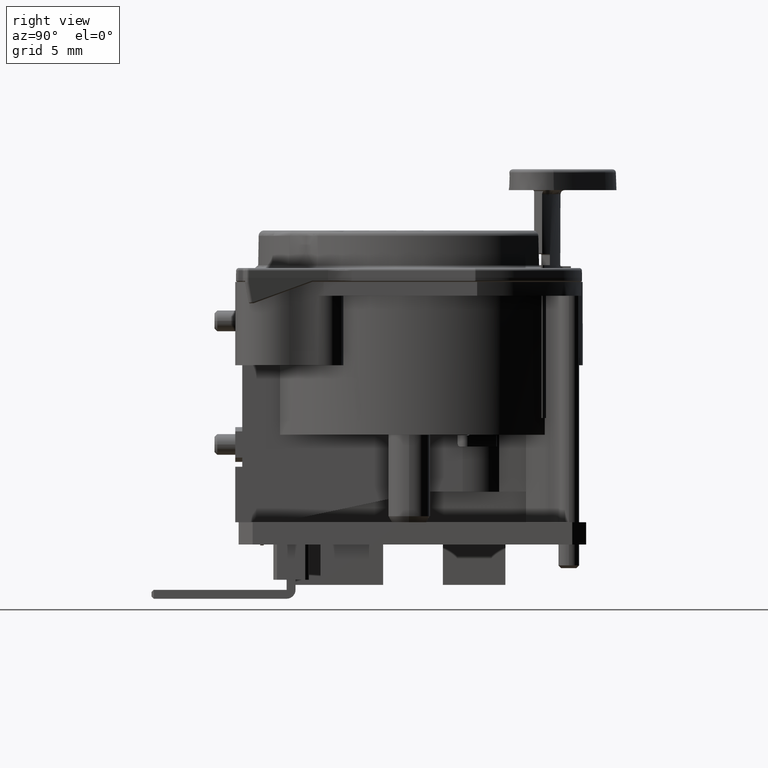
[diagram: clean part render]
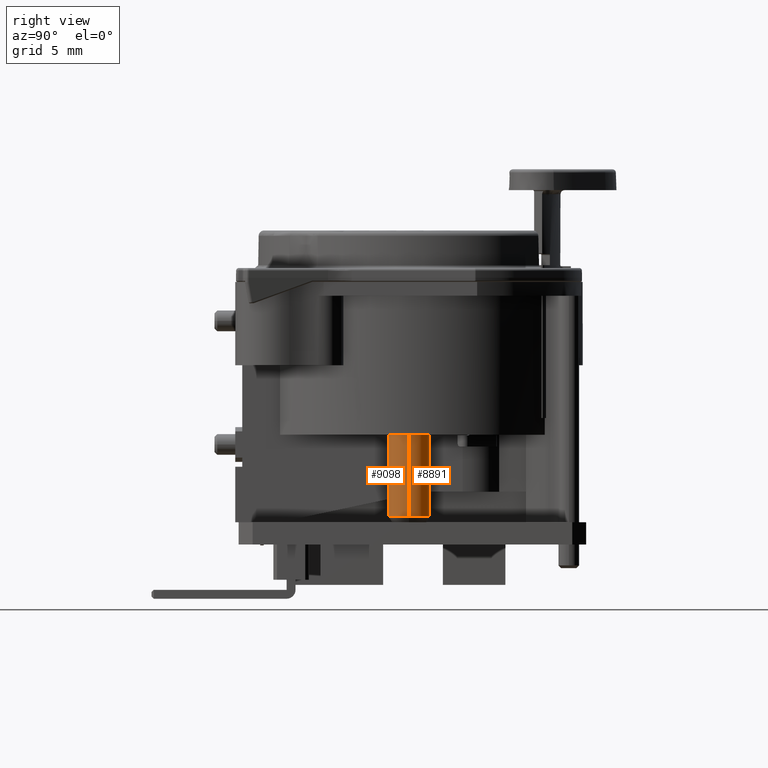
[diagram: same view with one multi-face feature highlighted, each face labeled with its STEP entity id]
A machine part, right view. The highlighted faces form ONE feature: a constant-radius fillet chain: 2 tangent blend faces with common blend radius 1.5 mm. The faces share edges in the B-rep.
Their STEP definitions:
[1] entity #9098 (Cylinder):
#478=CARTESIAN_POINT('',(8.425E0,0.E0,-1.47E1));
#479=DIRECTION('',(0.E0,0.E0,-1.E0));
#480=DIRECTION('',(1.E0,0.E0,0.E0));
#481=AXIS2_PLACEMENT_3D('',#478,#479,#480);
#600=DIRECTION('',(2.787742245480E-6,-2.268451731851E-9,-9.999999999961E-1));
#601=VECTOR('',#600,5.866977859362E0);
#602=CARTESIAN_POINT('',(6.925E0,0.E0,-1.47E1));
#603=LINE('',#602,#601);
#724=CARTESIAN_POINT('',(8.425E0,0.E0,-2.056697418476E1));
#725=DIRECTION('',(0.E0,0.E0,-1.E0));
#726=DIRECTION('',(1.E0,0.E0,0.E0));
#727=AXIS2_PLACEMENT_3D('',#724,#725,#726);
#729=DIRECTION('',(-2.787742244572E-6,2.268451742948E-9,-9.999999999961E-1));
#730=VECTOR('',#729,5.866977859362E0);
#731=CARTESIAN_POINT('',(9.925E0,0.E0,-1.47E1));
#732=LINE('',#731,#730);
#6878=CARTESIAN_POINT('',(6.925E0,0.E0,-1.47E1));
#6879=CARTESIAN_POINT('',(9.925E0,0.E0,-1.47E1));
#6880=VERTEX_POINT('',#6878);
#6881=VERTEX_POINT('',#6879);
#7765=CARTESIAN_POINT('',(6.925E0,0.E0,-2.056697418476E1));
#7766=CARTESIAN_POINT('',(9.925E0,0.E0,-2.056697418476E1));
#7767=VERTEX_POINT('',#7765);
#7768=VERTEX_POINT('',#7766);
#9087=CARTESIAN_POINT('',(8.425E0,0.E0,-1.47E1));
#9088=DIRECTION('',(0.E0,0.E0,-1.E0));
#9089=DIRECTION('',(-1.E0,0.E0,0.E0));
#9090=AXIS2_PLACEMENT_3D('',#9087,#9088,#9089);
#9091=CYLINDRICAL_SURFACE('',#9090,1.5E0);
#9092=ORIENTED_EDGE('',*,*,#9081,.T.);
#9093=ORIENTED_EDGE('',*,*,#8887,.F.);
#9094=ORIENTED_EDGE('',*,*,#8804,.F.);
#9095=ORIENTED_EDGE('',*,*,#8884,.T.);
#9096=EDGE_LOOP('',(#9092,#9093,#9094,#9095));
#9097=FACE_OUTER_BOUND('',#9096,.F.);
#9098=ADVANCED_FACE('',(#9097),#9091,.T.);
#482=CIRCLE('',#481,1.5E0);
#728=CIRCLE('',#727,1.5E0);
#8804=EDGE_CURVE('',#6881,#6880,#482,.T.);
#8884=EDGE_CURVE('',#6881,#7768,#732,.T.);
#8887=EDGE_CURVE('',#6880,#7767,#603,.T.);
#9081=EDGE_CURVE('',#7768,#7767,#728,.T.);
[2] entity #8891 (Cylinder):
#473=CARTESIAN_POINT('',(8.425E0,0.E0,-1.47E1));
#474=DIRECTION('',(0.E0,0.E0,-1.E0));
#475=DIRECTION('',(-1.E0,0.E0,0.E0));
#476=AXIS2_PLACEMENT_3D('',#473,#474,#475);
#595=CARTESIAN_POINT('',(8.425E0,0.E0,-2.056697418476E1));
#596=DIRECTION('',(0.E0,0.E0,-1.E0));
#597=DIRECTION('',(-1.E0,0.E0,0.E0));
#598=AXIS2_PLACEMENT_3D('',#595,#596,#597);
#600=DIRECTION('',(2.787742245480E-6,-2.268451731851E-9,-9.999999999961E-1));
#601=VECTOR('',#600,5.866977859362E0);
#602=CARTESIAN_POINT('',(6.925E0,0.E0,-1.47E1));
#603=LINE('',#602,#601);
#729=DIRECTION('',(-2.787742244572E-6,2.268451742948E-9,-9.999999999961E-1));
#730=VECTOR('',#729,5.866977859362E0);
#731=CARTESIAN_POINT('',(9.925E0,0.E0,-1.47E1));
#732=LINE('',#731,#730);
#6878=CARTESIAN_POINT('',(6.925E0,0.E0,-1.47E1));
#6879=CARTESIAN_POINT('',(9.925E0,0.E0,-1.47E1));
#6880=VERTEX_POINT('',#6878);
#6881=VERTEX_POINT('',#6879);
#7765=CARTESIAN_POINT('',(6.925E0,0.E0,-2.056697418476E1));
#7766=CARTESIAN_POINT('',(9.925E0,0.E0,-2.056697418476E1));
#7767=VERTEX_POINT('',#7765);
#7768=VERTEX_POINT('',#7766);
#8877=CARTESIAN_POINT('',(8.425E0,0.E0,-1.47E1));
#8878=DIRECTION('',(0.E0,0.E0,-1.E0));
#8879=DIRECTION('',(-1.E0,0.E0,0.E0));
#8880=AXIS2_PLACEMENT_3D('',#8877,#8878,#8879);
#8881=CYLINDRICAL_SURFACE('',#8880,1.5E0);
#8883=ORIENTED_EDGE('',*,*,#8882,.T.);
#8885=ORIENTED_EDGE('',*,*,#8884,.F.);
#8886=ORIENTED_EDGE('',*,*,#8802,.F.);
#8888=ORIENTED_EDGE('',*,*,#8887,.T.);
#8889=EDGE_LOOP('',(#8883,#8885,#8886,#8888));
#8890=FACE_OUTER_BOUND('',#8889,.F.);
#8891=ADVANCED_FACE('',(#8890),#8881,.T.);
#477=CIRCLE('',#476,1.5E0);
#599=CIRCLE('',#598,1.5E0);
#8802=EDGE_CURVE('',#6880,#6881,#477,.T.);
#8882=EDGE_CURVE('',#7767,#7768,#599,.T.);
#8884=EDGE_CURVE('',#6881,#7768,#732,.T.);
#8887=EDGE_CURVE('',#6880,#7767,#603,.T.);